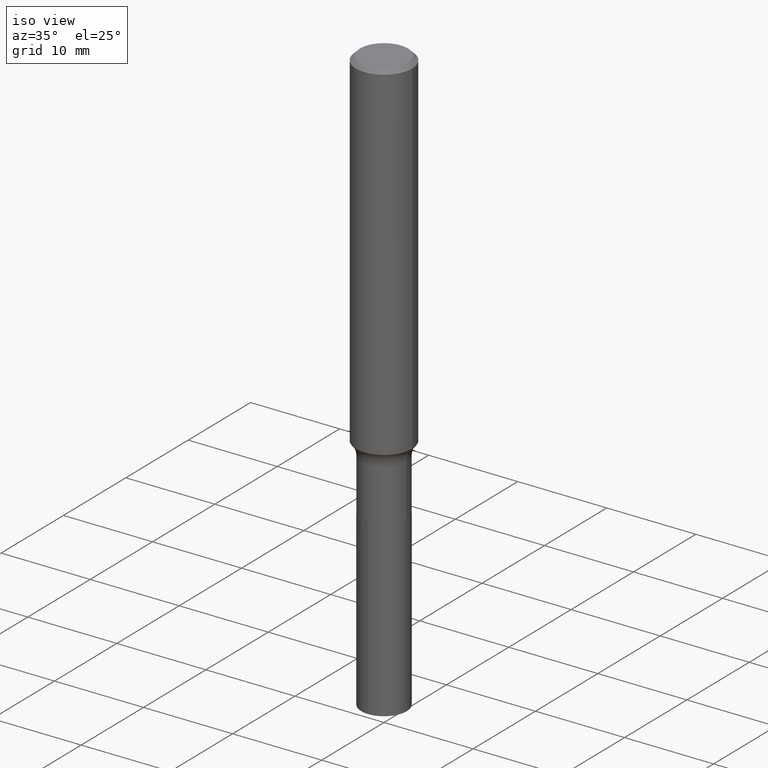
[diagram: clean part render]
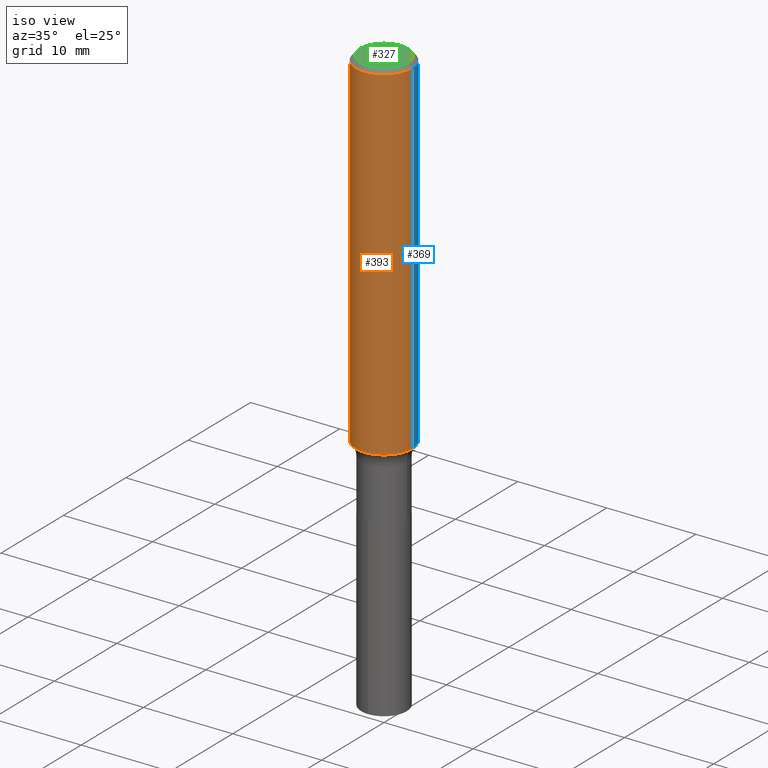
[diagram: same view with three faces highlighted in distinct colors, each labeled with its STEP entity id]
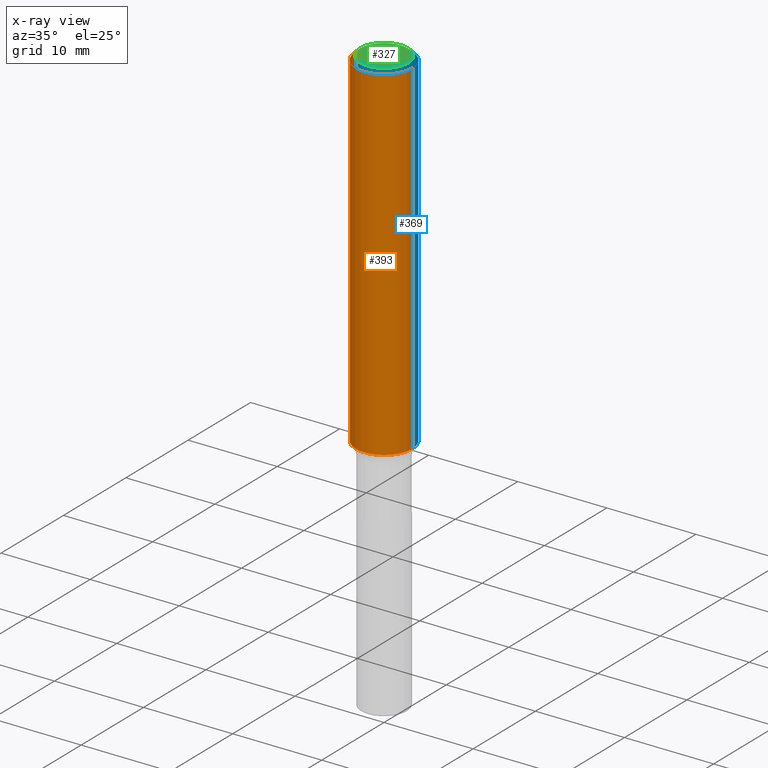
[diagram: x-ray of the same camera — body ghosted, the three highlighted faces saturated]
A machine part, iso view with three faces highlighted in distinct colors.
The next image is the same camera in x-ray (body ghosted, the three faces saturated) — at least one of them is partly hidden behind the body in this view.
Their STEP definitions:

[orange] entity #393 — the highlighted cylindrical surface (edge-blend (fillet) strip) has radius 3.175 mm, axis along (-0, 0, 1).
#2 = EDGE_CURVE ( 'NONE', #38, #292, #124, .T. ) ;
#17 = VECTOR ( 'NONE', #156, 39.37007874015748143 ) ;
#24 = VECTOR ( 'NONE', #41, 39.37007874015748143 ) ;
#38 = VERTEX_POINT ( 'NONE', #385 ) ;
#39 = EDGE_CURVE ( 'NONE', #77, #38, #268, .T. ) ;
#41 = DIRECTION ( 'NONE',  ( -2.445468806185136877E-29, 3.491481338843145188E-15, 1.000000000000000000 ) ) ;
#45 = VERTEX_POINT ( 'NONE', #211 ) ;
#46 = CIRCLE ( 'NONE', #251, 0.1250000000000000000 ) ;
#50 = FACE_OUTER_BOUND ( 'NONE', #80, .T. ) ;
#77 = VERTEX_POINT ( 'NONE', #212 ) ;
#79 = LINE ( 'NONE', #344, #17 ) ;
#80 = EDGE_LOOP ( 'NONE', ( #266, #200, #270, #466 ) ) ;
#84 = DIRECTION ( 'NONE',  ( 1.000000000000000000, -6.982962677686266711E-15, 0.000000000000000000 ) ) ;
#124 = LINE ( 'NONE', #155, #24 ) ;
#155 = CARTESIAN_POINT ( 'NONE',  ( 0.1250000000000000833, -8.728703347107839305E-16, 6.095220969744923945E-30 ) ) ;
#156 = DIRECTION ( 'NONE',  ( -2.445468806185136877E-29, 3.491481338843145188E-15, 1.000000000000000000 ) ) ;
#158 = DIRECTION ( 'NONE',  ( 1.000000000000000000, -6.982962677686269077E-15, 0.000000000000000000 ) ) ;
#200 = ORIENTED_EDGE ( 'NONE', *, *, #39, .T. ) ;
#211 = CARTESIAN_POINT ( 'NONE',  ( -0.1250000000000000000, -1.829572391230862659E-15, -0.01875000000000013115 ) ) ;
#212 = CARTESIAN_POINT ( 'NONE',  ( -0.1250000000000001388, -4.481857927058541405E-15, -1.538039538409206042 ) ) ;
#231 = CARTESIAN_POINT ( 'NONE',  ( 3.761227713859099469E-29, -5.370036346758668215E-15, -1.538039538409206042 ) ) ;
#235 = EDGE_CURVE ( 'NONE', #45, #292, #46, .T. ) ;
#251 = AXIS2_PLACEMENT_3D ( 'NONE', #460, #491, #84 ) ;
#266 = ORIENTED_EDGE ( 'NONE', *, *, #363, .F. ) ;
#268 = CIRCLE ( 'NONE', #318, 0.1250000000000001665 ) ;
#270 = ORIENTED_EDGE ( 'NONE', *, *, #2, .T. ) ;
#275 = CARTESIAN_POINT ( 'NONE',  ( 0.000000000000000000, 0.000000000000000000, 0.000000000000000000 ) ) ;
#278 = DIRECTION ( 'NONE',  ( -2.445468806185136597E-29, 3.491481338843145583E-15, 1.000000000000000000 ) ) ;
#292 = VERTEX_POINT ( 'NONE', #340 ) ;
#310 = AXIS2_PLACEMENT_3D ( 'NONE', #275, #278, #435 ) ;
#318 = AXIS2_PLACEMENT_3D ( 'NONE', #231, #382, #158 ) ;
#340 = CARTESIAN_POINT ( 'NONE',  ( 0.1250000000000000000, -9.383356098140928781E-16, -0.01875000000000013115 ) ) ;
#344 = CARTESIAN_POINT ( 'NONE',  ( -0.1250000000000000833, 8.881784197001258240E-16, -6.148668862818636431E-30 ) ) ;
#363 = EDGE_CURVE ( 'NONE', #77, #45, #79, .T. ) ;
#382 = DIRECTION ( 'NONE',  ( -2.445468806185136597E-29, 3.491481338843145583E-15, 1.000000000000000000 ) ) ;
#385 = CARTESIAN_POINT ( 'NONE',  ( 0.1250000000000001388, -6.242906681469453132E-15, -1.538039538409206042 ) ) ;
#391 = CYLINDRICAL_SURFACE ( 'NONE', #310, 0.1250000000000000833 ) ;
#393 = ADVANCED_FACE ( 'NONE', ( #50 ), #391, .T. ) ;
#435 = DIRECTION ( 'NONE',  ( 1.000000000000000000, -6.982962677686266711E-15, 4.876176775795935793E-29 ) ) ;
#460 = CARTESIAN_POINT ( 'NONE',  ( 4.585254011597162998E-31, -6.546527510330944066E-17, -0.01875000000000013115 ) ) ;
#466 = ORIENTED_EDGE ( 'NONE', *, *, #235, .F. ) ;
#491 = DIRECTION ( 'NONE',  ( -2.445468806185136597E-29, 3.491481338843145583E-15, 1.000000000000000000 ) ) ;

[blue] entity #369 — the highlighted cylindrical surface (edge-blend (fillet) strip) has radius 3.175 mm, axis along (-0, 0, 1).
#2 = EDGE_CURVE ( 'NONE', #38, #292, #124, .T. ) ;
#10 = CARTESIAN_POINT ( 'NONE',  ( 4.585254011597162998E-31, -6.546527510330944066E-17, -0.01875000000000013115 ) ) ;
#17 = VECTOR ( 'NONE', #156, 39.37007874015748143 ) ;
#24 = VECTOR ( 'NONE', #41, 39.37007874015748143 ) ;
#32 = AXIS2_PLACEMENT_3D ( 'NONE', #10, #394, #165 ) ;
#38 = VERTEX_POINT ( 'NONE', #385 ) ;
#41 = DIRECTION ( 'NONE',  ( -2.445468806185136877E-29, 3.491481338843145188E-15, 1.000000000000000000 ) ) ;
#43 = ORIENTED_EDGE ( 'NONE', *, *, #363, .T. ) ;
#45 = VERTEX_POINT ( 'NONE', #211 ) ;
#77 = VERTEX_POINT ( 'NONE', #212 ) ;
#79 = LINE ( 'NONE', #344, #17 ) ;
#122 = ORIENTED_EDGE ( 'NONE', *, *, #438, .F. ) ;
#124 = LINE ( 'NONE', #155, #24 ) ;
#152 = AXIS2_PLACEMENT_3D ( 'NONE', #381, #306, #465 ) ;
#154 = FACE_OUTER_BOUND ( 'NONE', #252, .T. ) ;
#155 = CARTESIAN_POINT ( 'NONE',  ( 0.1250000000000000833, -8.728703347107839305E-16, 6.095220969744923945E-30 ) ) ;
#156 = DIRECTION ( 'NONE',  ( -2.445468806185136877E-29, 3.491481338843145188E-15, 1.000000000000000000 ) ) ;
#165 = DIRECTION ( 'NONE',  ( 1.000000000000000000, -6.982962677686266711E-15, 0.000000000000000000 ) ) ;
#194 = CARTESIAN_POINT ( 'NONE',  ( 3.761227713859099469E-29, -5.370036346758668215E-15, -1.538039538409206042 ) ) ;
#197 = ORIENTED_EDGE ( 'NONE', *, *, #356, .T. ) ;
#211 = CARTESIAN_POINT ( 'NONE',  ( -0.1250000000000000000, -1.829572391230862659E-15, -0.01875000000000013115 ) ) ;
#212 = CARTESIAN_POINT ( 'NONE',  ( -0.1250000000000001388, -4.481857927058541405E-15, -1.538039538409206042 ) ) ;
#228 = CYLINDRICAL_SURFACE ( 'NONE', #152, 0.1250000000000000833 ) ;
#252 = EDGE_LOOP ( 'NONE', ( #197, #43, #122, #271 ) ) ;
#260 = CIRCLE ( 'NONE', #328, 0.1250000000000001665 ) ;
#271 = ORIENTED_EDGE ( 'NONE', *, *, #2, .F. ) ;
#292 = VERTEX_POINT ( 'NONE', #340 ) ;
#306 = DIRECTION ( 'NONE',  ( -2.445468806185136597E-29, 3.491481338843145583E-15, 1.000000000000000000 ) ) ;
#328 = AXIS2_PLACEMENT_3D ( 'NONE', #194, #415, #375 ) ;
#340 = CARTESIAN_POINT ( 'NONE',  ( 0.1250000000000000000, -9.383356098140928781E-16, -0.01875000000000013115 ) ) ;
#344 = CARTESIAN_POINT ( 'NONE',  ( -0.1250000000000000833, 8.881784197001258240E-16, -6.148668862818636431E-30 ) ) ;
#356 = EDGE_CURVE ( 'NONE', #38, #77, #260, .T. ) ;
#363 = EDGE_CURVE ( 'NONE', #77, #45, #79, .T. ) ;
#369 = ADVANCED_FACE ( 'NONE', ( #154 ), #228, .T. ) ;
#373 = CIRCLE ( 'NONE', #32, 0.1250000000000000000 ) ;
#375 = DIRECTION ( 'NONE',  ( 1.000000000000000000, -6.982962677686269077E-15, 0.000000000000000000 ) ) ;
#381 = CARTESIAN_POINT ( 'NONE',  ( 0.000000000000000000, 0.000000000000000000, 0.000000000000000000 ) ) ;
#385 = CARTESIAN_POINT ( 'NONE',  ( 0.1250000000000001388, -6.242906681469453132E-15, -1.538039538409206042 ) ) ;
#394 = DIRECTION ( 'NONE',  ( -2.445468806185136597E-29, 3.491481338843145583E-15, 1.000000000000000000 ) ) ;
#415 = DIRECTION ( 'NONE',  ( -2.445468806185136597E-29, 3.491481338843145583E-15, 1.000000000000000000 ) ) ;
#438 = EDGE_CURVE ( 'NONE', #292, #45, #373, .T. ) ;
#465 = DIRECTION ( 'NONE',  ( 1.000000000000000000, -6.982962677686266711E-15, 4.876176775795935793E-29 ) ) ;

[green] entity #327 — the highlighted planar face has unit normal (0, -0, -1).
#111 = VERTEX_POINT ( 'NONE', #209 ) ;
#121 = CIRCLE ( 'NONE', #174, 0.1062499999999999972 ) ;
#125 = DIRECTION ( 'NONE',  ( -2.445468806185136597E-29, 3.491481338843145583E-15, 1.000000000000000000 ) ) ;
#139 = DIRECTION ( 'NONE',  ( -2.445468806185136597E-29, 3.491481338843145583E-15, 1.000000000000000000 ) ) ;
#142 = ORIENTED_EDGE ( 'NONE', *, *, #272, .T. ) ;
#147 = CARTESIAN_POINT ( 'NONE',  ( 0.1062499999999999972, -8.259777185439879685E-16, 6.505936120475796882E-18 ) ) ;
#174 = AXIS2_PLACEMENT_3D ( 'NONE', #243, #125, #478 ) ;
#177 = PLANE ( 'NONE',  #301 ) ;
#187 = DIRECTION ( 'NONE',  ( 1.000000000000000000, -6.982962677686266711E-15, 4.875930095424100059E-29 ) ) ;
#189 = CARTESIAN_POINT ( 'NONE',  ( -7.955031918821649840E-47, 1.135767727816383790E-32, 3.252968060235157457E-18 ) ) ;
#209 = CARTESIAN_POINT ( 'NONE',  ( -0.1062499999999999972, 7.746724220558198188E-16, 6.505936120465012444E-18 ) ) ;
#243 = CARTESIAN_POINT ( 'NONE',  ( -1.591006383764329968E-46, 2.271535455632767580E-32, 6.505936120470314915E-18 ) ) ;
#255 = DIRECTION ( 'NONE',  ( -1.000000000000000000, 6.982962677686265922E-15, -4.876176775795935793E-29 ) ) ;
#261 = ORIENTED_EDGE ( 'NONE', *, *, #463, .T. ) ;
#272 = EDGE_CURVE ( 'NONE', #111, #334, #404, .T. ) ;
#290 = DIRECTION ( 'NONE',  ( 2.438088387897960049E-29, -3.491481338843145188E-15, -1.000000000000000000 ) ) ;
#298 = CARTESIAN_POINT ( 'NONE',  ( -1.591006383764329968E-46, 2.271535455632767580E-32, 6.505936120470314915E-18 ) ) ;
#301 = AXIS2_PLACEMENT_3D ( 'NONE', #189, #290, #255 ) ;
#327 = ADVANCED_FACE ( 'NONE', ( #456 ), #177, .F. ) ;
#334 = VERTEX_POINT ( 'NONE', #147 ) ;
#370 = EDGE_LOOP ( 'NONE', ( #142, #261 ) ) ;
#404 = CIRCLE ( 'NONE', #475, 0.1062499999999999972 ) ;
#456 = FACE_OUTER_BOUND ( 'NONE', #370, .T. ) ;
#463 = EDGE_CURVE ( 'NONE', #334, #111, #121, .T. ) ;
#475 = AXIS2_PLACEMENT_3D ( 'NONE', #298, #139, #187 ) ;
#478 = DIRECTION ( 'NONE',  ( 1.000000000000000000, -6.982962677686266711E-15, 4.875930095424100059E-29 ) ) ;